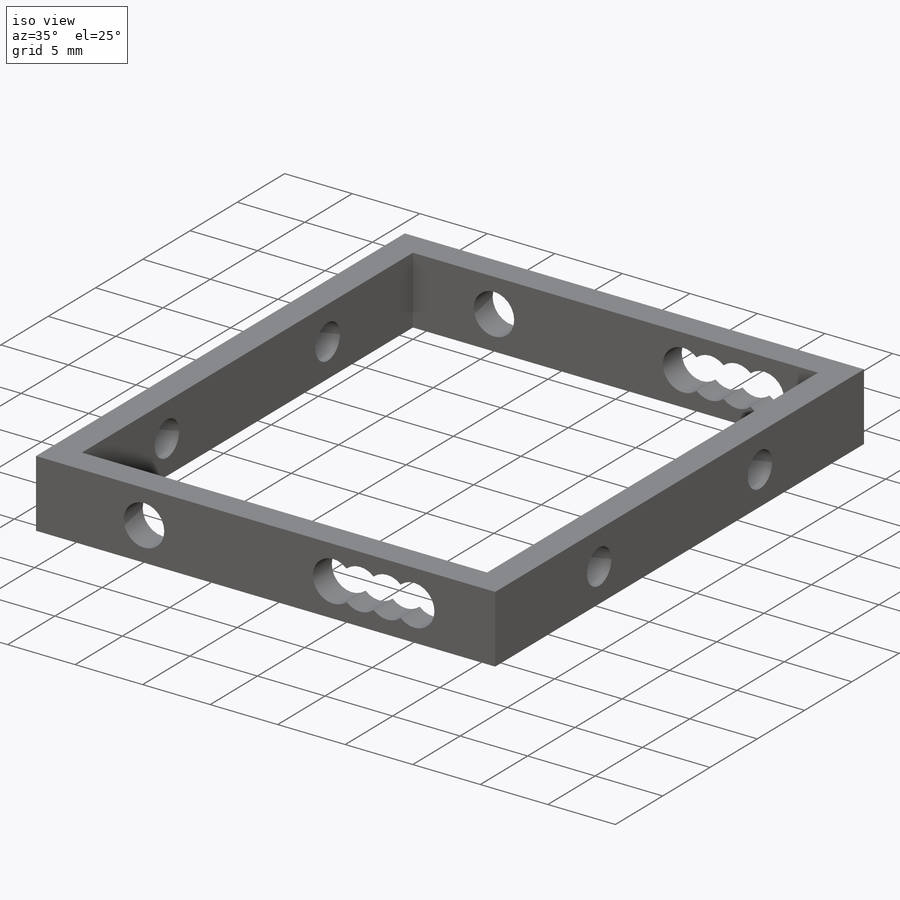
[diagram: iso view]
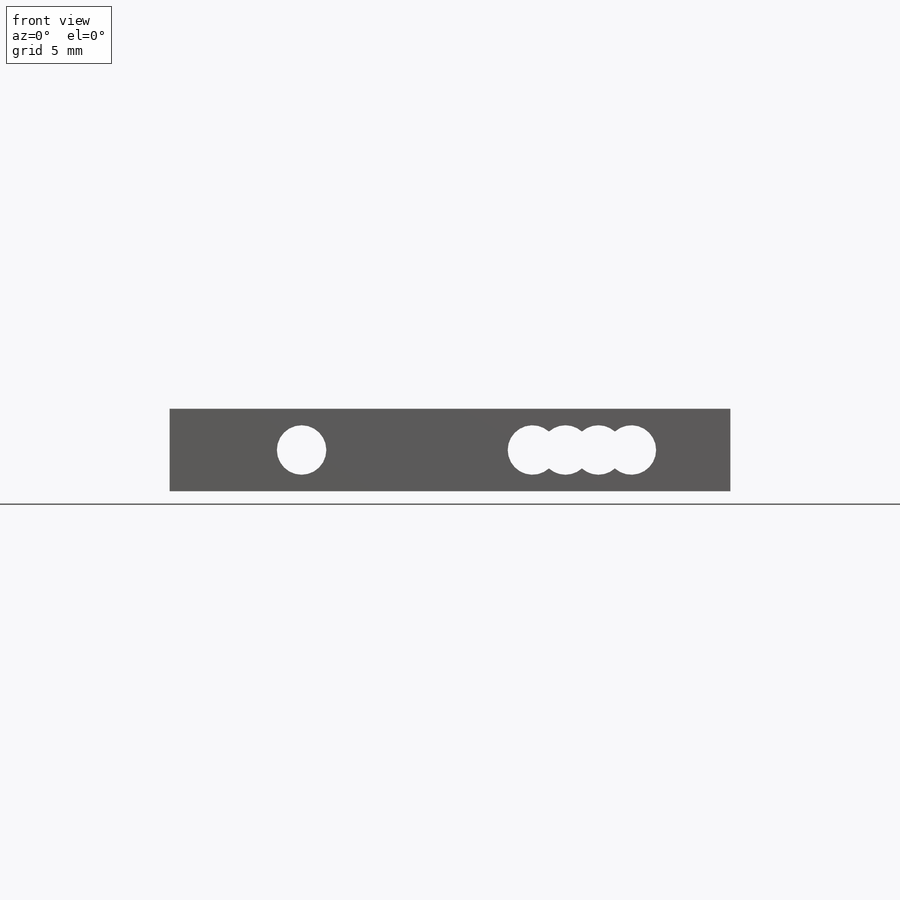
[diagram: front view]
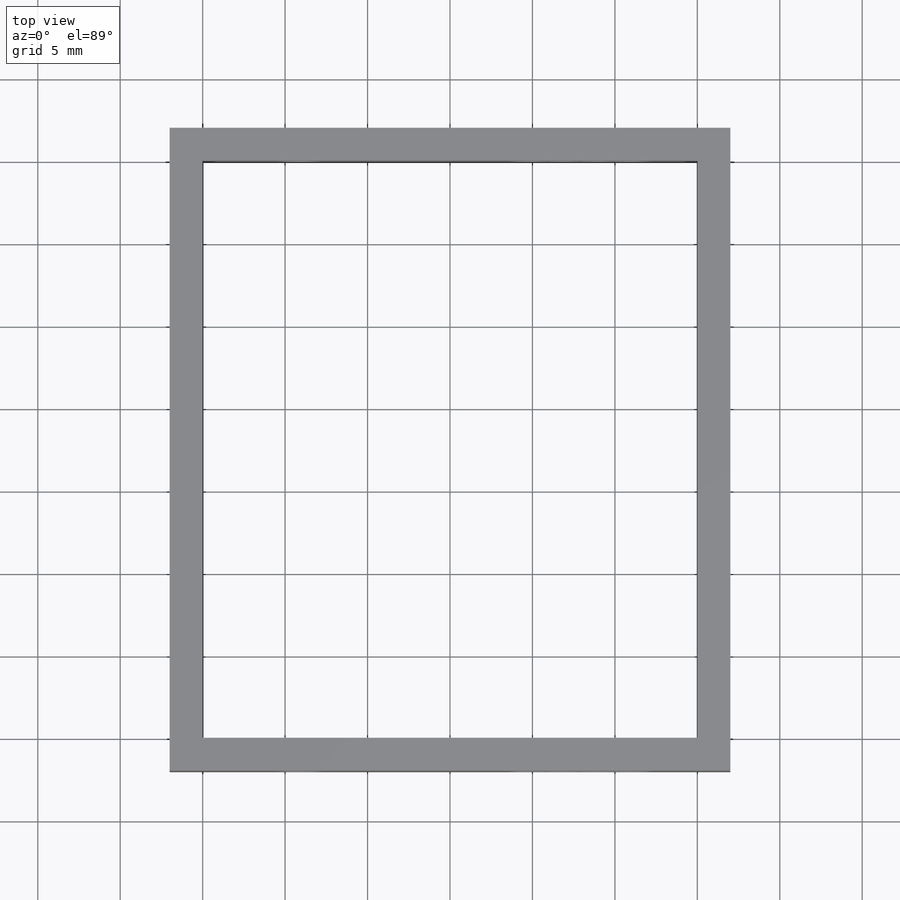
[diagram: top view]
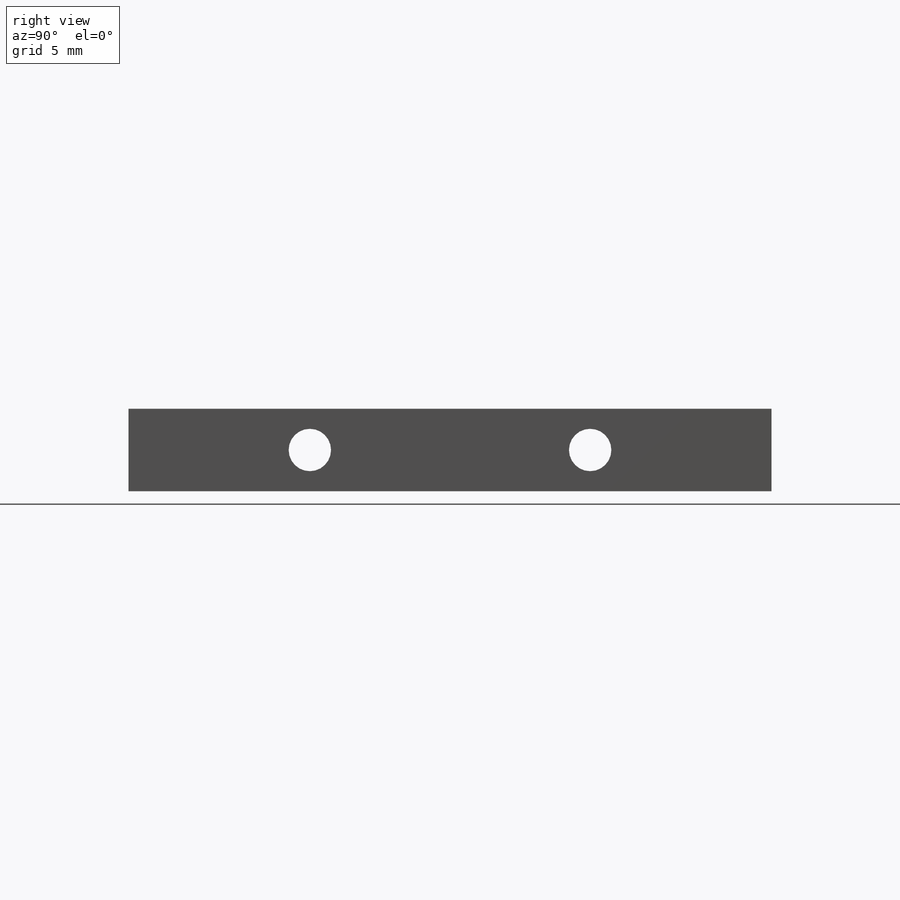
[diagram: right view]
SOLIDWORKS PART (.sldprt)
format: sldprt  version: not decoded by parser v0  size: 466,432 bytes
history: native  units: mm
features: plane x3, sketch x3, extrude x2, material x1, pattern_linear x1, mirror x1, cut_extrude x1 (+9 scaffold rows collapsed)
feature tree (21):
  scaffold x9  (default folders/planes/origin — collapsed)
  material  "Náilon 6/10"
  plane  "Plano frontal"
  plane  "Plano superior"
  plane  "Plano direito"
  sketch  "Esboço1"  dims[D3=3.0mm D1=30.0mm D2=5.0mm D4=6.0mm D5=14.0mm D6=16.0mm D7=18.0mm D8=20.0mm]
  extrude  "Ressalto-extrusão1"  Depth=2mm
  sketch  "Esboço3"  dims[D1=2.0mm]
  extrude  "Ressalto-extrusão2"  Depth=39mm
  pattern_linear  "Padrão linear1"  Count1=2 Count2=1 Spacing1=37mm Spacing2=10mm
  mirror  "Espelhar1"
  sketch  "Esboço4"  dims[D1=17.0mm D2=11.0mm D3=~28.334051mm D4=5.0mm]
  cut_extrude  "Corte-extrusão1"  Depth=39mm
decode coverage: 7 of 8 modeling features carry decoded parameters
note: ~ marks probable driven/reference dimensions
note: suppression state not decoded; provenance and decode notes live in map.json
